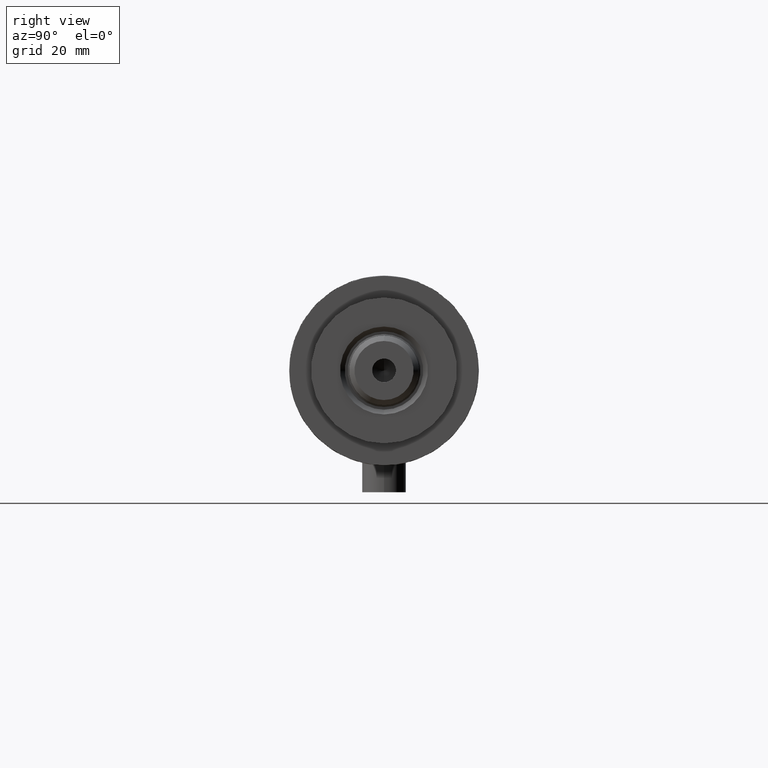
[diagram: clean part render]
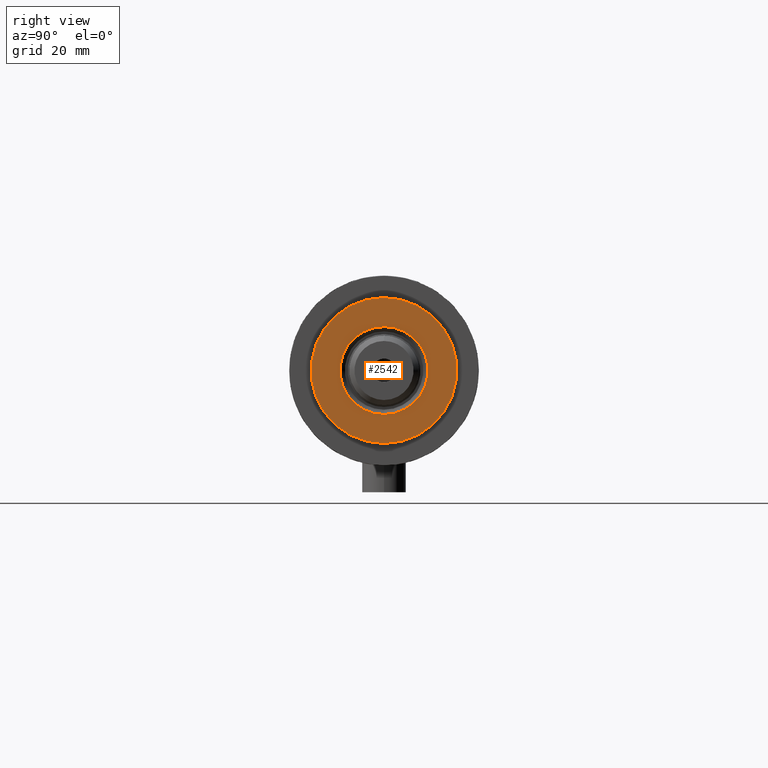
[diagram: same view with one face highlighted and labeled with its STEP entity id]
A machine part, right view. The second image highlights one B-rep face of the part: STEP entity #2542.
In plain terms, the highlighted planar face has unit normal (1, 0, -0).
Its self-contained STEP definition (entity closure, byte-faithful):
#140 = CIRCLE ( 'NONE', #2662, 12.05000000000000426 ) ;
#172 = DIRECTION ( 'NONE',  ( -0.000000000000000000, -0.000000000000000000, -1.000000000000000000 ) ) ;
#201 = ORIENTED_EDGE ( 'NONE', *, *, #481, .T. ) ;
#375 = CARTESIAN_POINT ( 'NONE',  ( 0.000000000000000000, 0.000000000000000000, 33.50000000000000000 ) ) ;
#481 = EDGE_CURVE ( 'NONE', #1210, #1279, #5091, .T. ) ;
#492 = DIRECTION ( 'NONE',  ( 0.000000000000000000, 0.000000000000000000, 1.000000000000000000 ) ) ;
#554 = ORIENTED_EDGE ( 'NONE', *, *, #4931, .T. ) ;
#662 = DIRECTION ( 'NONE',  ( 1.000000000000000000, 0.000000000000000000, -0.000000000000000000 ) ) ;
#930 = CARTESIAN_POINT ( 'NONE',  ( 0.000000000000000000, 0.000000000000000000, 33.50000000000000000 ) ) ;
#1131 = CARTESIAN_POINT ( 'NONE',  ( -19.99999999999999645, 0.000000000000000000, 33.50000000000000000 ) ) ;
#1135 = CARTESIAN_POINT ( 'NONE',  ( -12.05000000000000426, 1.475699392972560823E-15, 33.50000000000000000 ) ) ;
#1210 = VERTEX_POINT ( 'NONE', #1135 ) ;
#1279 = VERTEX_POINT ( 'NONE', #3742 ) ;
#1477 = CARTESIAN_POINT ( 'NONE',  ( 0.000000000000000000, 0.000000000000000000, 33.50000000000000000 ) ) ;
#1591 = DIRECTION ( 'NONE',  ( 1.000000000000000000, 0.000000000000000000, 0.000000000000000000 ) ) ;
#1739 = DIRECTION ( 'NONE',  ( 1.000000000000000000, 0.000000000000000000, 0.000000000000000000 ) ) ;
#1765 = CARTESIAN_POINT ( 'NONE',  ( 0.000000000000000000, 0.000000000000000000, 33.50000000000000000 ) ) ;
#1912 = VERTEX_POINT ( 'NONE', #4989 ) ;
#2102 = EDGE_LOOP ( 'NONE', ( #3639, #201 ) ) ;
#2194 = DIRECTION ( 'NONE',  ( 0.000000000000000000, 0.000000000000000000, 1.000000000000000000 ) ) ;
#2350 = ORIENTED_EDGE ( 'NONE', *, *, #4676, .T. ) ;
#2542 = ADVANCED_FACE ( 'NONE', ( #4253, #3831 ), #3509, .T. ) ;
#2662 = AXIS2_PLACEMENT_3D ( 'NONE', #1765, #172, #4921 ) ;
#2740 = DIRECTION ( 'NONE',  ( 1.000000000000000000, 0.000000000000000000, 0.000000000000000000 ) ) ;
#2824 = CIRCLE ( 'NONE', #4830, 19.99999999999999645 ) ;
#2997 = AXIS2_PLACEMENT_3D ( 'NONE', #930, #2194, #1739 ) ;
#3060 = DIRECTION ( 'NONE',  ( -0.000000000000000000, -0.000000000000000000, -1.000000000000000000 ) ) ;
#3126 = VERTEX_POINT ( 'NONE', #1131 ) ;
#3132 = CARTESIAN_POINT ( 'NONE',  ( 0.000000000000000000, 0.000000000000000000, 33.50000000000000000 ) ) ;
#3509 = PLANE ( 'NONE',  #4900 ) ;
#3639 = ORIENTED_EDGE ( 'NONE', *, *, #4615, .T. ) ;
#3742 = CARTESIAN_POINT ( 'NONE',  ( 12.05000000000000426, 0.000000000000000000, 33.50000000000000000 ) ) ;
#3830 = AXIS2_PLACEMENT_3D ( 'NONE', #3132, #3060, #2740 ) ;
#3831 = FACE_OUTER_BOUND ( 'NONE', #5195, .T. ) ;
#4253 = FACE_BOUND ( 'NONE', #2102, .T. ) ;
#4410 = CIRCLE ( 'NONE', #2997, 19.99999999999999645 ) ;
#4615 = EDGE_CURVE ( 'NONE', #1279, #1210, #140, .T. ) ;
#4676 = EDGE_CURVE ( 'NONE', #3126, #1912, #4410, .T. ) ;
#4712 = DIRECTION ( 'NONE',  ( 0.000000000000000000, 0.000000000000000000, 1.000000000000000000 ) ) ;
#4830 = AXIS2_PLACEMENT_3D ( 'NONE', #375, #492, #1591 ) ;
#4900 = AXIS2_PLACEMENT_3D ( 'NONE', #1477, #4712, #662 ) ;
#4921 = DIRECTION ( 'NONE',  ( 1.000000000000000000, 0.000000000000000000, 0.000000000000000000 ) ) ;
#4931 = EDGE_CURVE ( 'NONE', #1912, #3126, #2824, .T. ) ;
#4989 = CARTESIAN_POINT ( 'NONE',  ( 19.99999999999999645, 2.449293598294706119E-15, 33.50000000000000000 ) ) ;
#5091 = CIRCLE ( 'NONE', #3830, 12.05000000000000426 ) ;
#5195 = EDGE_LOOP ( 'NONE', ( #2350, #554 ) ) ;